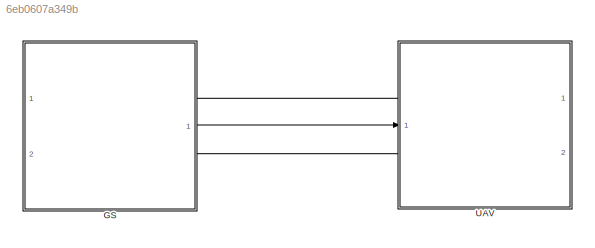
MODEL slx_6eb0607a349b
KIND model
CONFIG AbsTol = auto
CONFIG EnableMultiTasking = off
CONFIG FixedStep = auto
CONFIG MaxStep = auto
CONFIG MinStep = auto
CONFIG RelTol = 1e-3
CONFIG SampleTimeConstraint = Unconstrained
CONFIG Solver = VariableStepAuto
CONFIG SolverName = VariableStepAuto
CONFIG StartTime = 0.0
CONFIG StopTime = 10.0
BLOCK [ModelReference] GS
  ModelNameDialog = electricUAVGCS
  ModelReferenceVersion = 1.3
  PortSchema = {"entries":[{"content":{"headerSize":38,"margin":15,"minimumSpacing":25,"sides":[{"content":{"connectorIds":[]},"type":"ConnectorPlacement.EquallySpacedRectSide","uuid":"76636d8c-2a71-4cfe-9798-180c72f47694"},{"content":{"connectorIds":["In1","Out1","In2"],"side":"RIGHT"},"type":"ConnectorPlacement.EquallySpacedRectSide","uuid":"872f7c71-0239-4d56-8641-47d463e7d626"},{"content":{"connectorIds":[],...<+446ch>
  Ports = [2, 1]
BLOCK [ModelReference] UAV
  ModelNameDialog = electricUAV
  ModelReferenceVersion = 1.73
  PortSchema = {"entries":[{"content":{"headerSize":38,"margin":15,"minimumSpacing":25,"sides":[{"content":{"connectorIds":["Out2","In1","Out1"]},"type":"ConnectorPlacement.EquallySpacedRectSide","uuid":"76636d8c-2a71-4cfe-9798-180c72f47694"},{"content":{"connectorIds":[],"side":"RIGHT"},"type":"ConnectorPlacement.EquallySpacedRectSide","uuid":"872f7c71-0239-4d56-8641-47d463e7d626"},{"content":{"connectorIds":[]...<+447ch>
  Ports = [1, 2]
LINE GS:1 -> UAV:1
LINE UAV:1 -> GS:2
LINE UAV:2 -> GS:1
